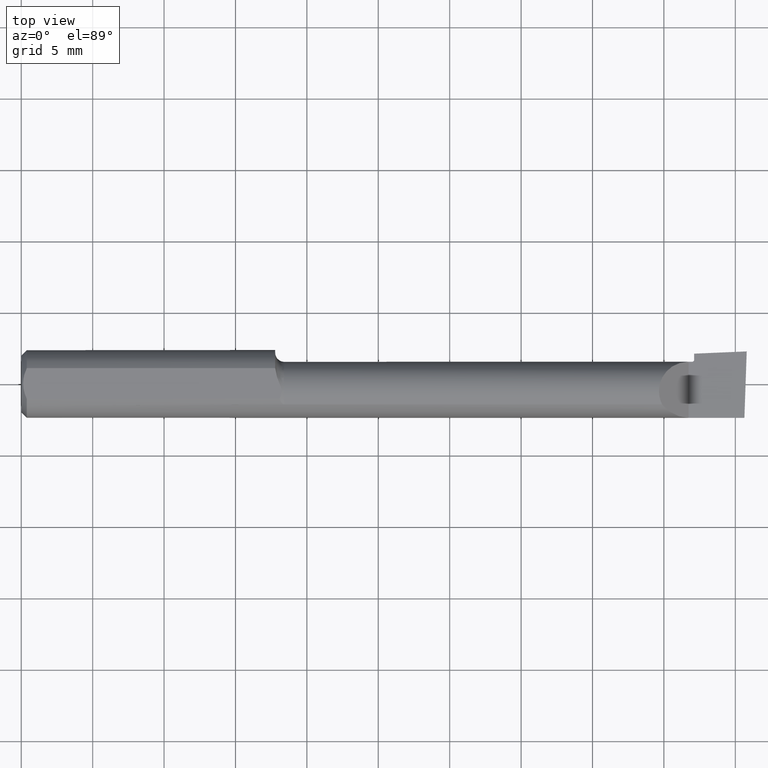
[diagram: clean part render]
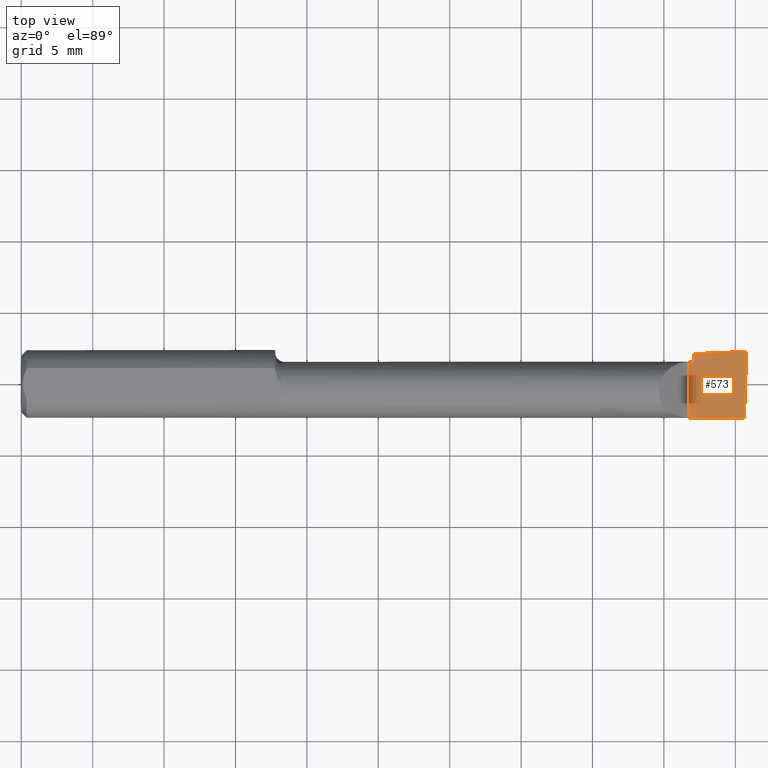
[diagram: same view with one face highlighted and labeled with its STEP entity id]
A machine part, top view. The second image highlights one B-rep face of the part: STEP entity #573.
In plain terms, the highlighted planar face has unit normal (-0, 0, -1).
Its self-contained STEP definition (entity closure, byte-faithful):
#18 = ORIENTED_EDGE ( 'NONE', *, *, #259, .F. ) ;
#20 = CARTESIAN_POINT ( 'NONE',  ( 1.906245324762311455, 0.08577087285469074673, -1.868634782302818344E-17 ) ) ;
#25 = FACE_OUTER_BOUND ( 'NONE', #148, .T. ) ;
#37 = EDGE_CURVE ( 'NONE', #90, #231, #105, .T. ) ;
#70 = CARTESIAN_POINT ( 'NONE',  ( 1.840000000000000080, 0.06139999999999985053, -1.868634782302818344E-17 ) ) ;
#71 = VERTEX_POINT ( 'NONE', #70 ) ;
#77 = CARTESIAN_POINT ( 'NONE',  ( 1.849999999999999867, 0.06139999999999991298, -1.868634782302819884E-17 ) ) ;
#90 = VERTEX_POINT ( 'NONE', #77 ) ;
#94 = CARTESIAN_POINT ( 'NONE',  ( 1.854999999999999760, 0.06639999999999990354, 0.000000000000000000 ) ) ;
#105 = CIRCLE ( 'NONE', #536, 0.004999999999999810152 ) ;
#107 = EDGE_CURVE ( 'NONE', #231, #121, #312, .T. ) ;
#112 = DIRECTION ( 'NONE',  ( -0.000000000000000000, 1.000000000000000000, -0.000000000000000000 ) ) ;
#114 = ORIENTED_EDGE ( 'NONE', *, *, #124, .F. ) ;
#116 = VERTEX_POINT ( 'NONE', #217 ) ;
#121 = VERTEX_POINT ( 'NONE', #615 ) ;
#124 = EDGE_CURVE ( 'NONE', #121, #625, #480, .T. ) ;
#128 = CARTESIAN_POINT ( 'NONE',  ( 1.859368142709067584, 0.08375808967248928039, -1.868634782302818344E-17 ) ) ;
#135 = EDGE_CURVE ( 'NONE', #116, #533, #401, .T. ) ;
#148 = EDGE_LOOP ( 'NONE', ( #179, #430, #114, #445, #203, #18, #566 ) ) ;
#164 = VECTOR ( 'NONE', #614, 39.37007874015748854 ) ;
#166 = CARTESIAN_POINT ( 'NONE',  ( 1.849999999999999867, 0.06639999999999991742, 0.000000000000000000 ) ) ;
#170 = CARTESIAN_POINT ( 'NONE',  ( 1.840000000000000080, 0.09359999999999998876, -1.868634782302818344E-17 ) ) ;
#179 = ORIENTED_EDGE ( 'NONE', *, *, #135, .T. ) ;
#183 = CARTESIAN_POINT ( 'NONE',  ( 3.517254291842732546E-19, 0.06139999999999985747, -1.868634782302818344E-17 ) ) ;
#203 = ORIENTED_EDGE ( 'NONE', *, *, #37, .F. ) ;
#207 = CARTESIAN_POINT ( 'NONE',  ( 1.953122615924094641, 0.08778111608944104416, -1.868634782302818344E-17 ) ) ;
#217 = CARTESIAN_POINT ( 'NONE',  ( 1.840000000000000080, -0.09359999999999998876, -1.868634782302818344E-17 ) ) ;
#231 = VERTEX_POINT ( 'NONE', #94 ) ;
#259 = EDGE_CURVE ( 'NONE', #71, #90, #515, .T. ) ;
#262 = VECTOR ( 'NONE', #503, 39.37007874015748143 ) ;
#289 = CARTESIAN_POINT ( 'NONE',  ( 1.999939969396823392, 0.08805703149137224239, -1.868634782302818344E-17 ) ) ;
#303 = EDGE_CURVE ( 'NONE', #116, #71, #586, .T. ) ;
#312 = LINE ( 'NONE', #558, #262 ) ;
#314 = DIRECTION ( 'NONE',  ( 0.000000000000000000, 0.000000000000000000, 1.000000000000000000 ) ) ;
#356 = DIRECTION ( 'NONE',  ( -0.000000000000000000, 0.000000000000000000, -1.000000000000000000 ) ) ;
#360 = CARTESIAN_POINT ( 'NONE',  ( 1.854999999999999760, 0.08357052569068625092, -1.707404996040164512E-17 ) ) ;
#364 = CARTESIAN_POINT ( 'NONE',  ( 1.993644362309209273, -0.09359999999999998876, -1.868634782302818344E-17 ) ) ;
#378 = CARTESIAN_POINT ( 'NONE',  ( 2.000000000000000444, 0.08978918869558996652, 4.097771990496394828E-16 ) ) ;
#401 = LINE ( 'NONE', #609, #403 ) ;
#403 = VECTOR ( 'NONE', #446, 39.37007874015748143 ) ;
#407 = PLANE ( 'NONE',  #510 ) ;
#430 = ORIENTED_EDGE ( 'NONE', *, *, #436, .T. ) ;
#436 = EDGE_CURVE ( 'NONE', #533, #625, #531, .T. ) ;
#445 = ORIENTED_EDGE ( 'NONE', *, *, #107, .F. ) ;
#446 = DIRECTION ( 'NONE',  ( 1.000000000000000000, -0.000000000000000000, -0.000000000000000000 ) ) ;
#465 = VECTOR ( 'NONE', #574, 39.37007874015748143 ) ;
#479 = CARTESIAN_POINT ( 'NONE',  ( 1.840000000000000080, 0.09359999999999998876, -1.868634782302818344E-17 ) ) ;
#480 = B_SPLINE_CURVE_WITH_KNOTS ( 'NONE', 3,
 ( #360, #563, #496, #128, #20, #207, #494 ),
 .UNSPECIFIED., .F., .F.,
 ( 4, 3, 4 ),
 ( 0.005501299597334763543, 0.005612352658126768500, 0.009187685148801891938 ),
 .UNSPECIFIED. ) ;
#494 = CARTESIAN_POINT ( 'NONE',  ( 2.000000000000000444, 0.08978918869558996652, 4.097771990496394828E-16 ) ) ;
#496 = CARTESIAN_POINT ( 'NONE',  ( 1.857912095033705357, 0.08369557080627151868, -1.868634782302818344E-17 ) ) ;
#503 = DIRECTION ( 'NONE',  ( 4.268512490100411279E-18, 1.000000000000000000, 0.000000000000000000 ) ) ;
#505 = DIRECTION ( 'NONE',  ( -1.000000000000000000, 0.000000000000000000, 0.000000000000000000 ) ) ;
#510 = AXIS2_PLACEMENT_3D ( 'NONE', #170, #356, #560 ) ;
#515 = LINE ( 'NONE', #183, #465 ) ;
#531 = LINE ( 'NONE', #289, #164 ) ;
#533 = VERTEX_POINT ( 'NONE', #364 ) ;
#536 = AXIS2_PLACEMENT_3D ( 'NONE', #166, #314, #505 ) ;
#558 = CARTESIAN_POINT ( 'NONE',  ( 1.854999999999999760, 0.09359999999999998876, -1.868634782302818344E-17 ) ) ;
#559 = VECTOR ( 'NONE', #112, 39.37007874015748143 ) ;
#560 = DIRECTION ( 'NONE',  ( -1.000000000000000000, 0.000000000000000000, 0.000000000000000000 ) ) ;
#563 = CARTESIAN_POINT ( 'NONE',  ( 1.856456047463834969, 0.08363304948311850451, -1.868634782302818344E-17 ) ) ;
#566 = ORIENTED_EDGE ( 'NONE', *, *, #303, .F. ) ;
#573 = ADVANCED_FACE ( 'NONE', ( #25 ), #407, .F. ) ;
#574 = DIRECTION ( 'NONE',  ( 1.000000000000000000, -4.268512490100411279E-18, 0.000000000000000000 ) ) ;
#586 = LINE ( 'NONE', #479, #559 ) ;
#609 = CARTESIAN_POINT ( 'NONE',  ( 1.840000000000000080, -0.09359999999999998876, -1.868634782302818344E-17 ) ) ;
#614 = DIRECTION ( 'NONE',  ( 0.03463576215158526567, 0.9994000019912840926, 0.000000000000000000 ) ) ;
#615 = CARTESIAN_POINT ( 'NONE',  ( 1.854999999999999760, 0.08357052569068625092, -1.707404996040164512E-17 ) ) ;
#625 = VERTEX_POINT ( 'NONE', #378 ) ;